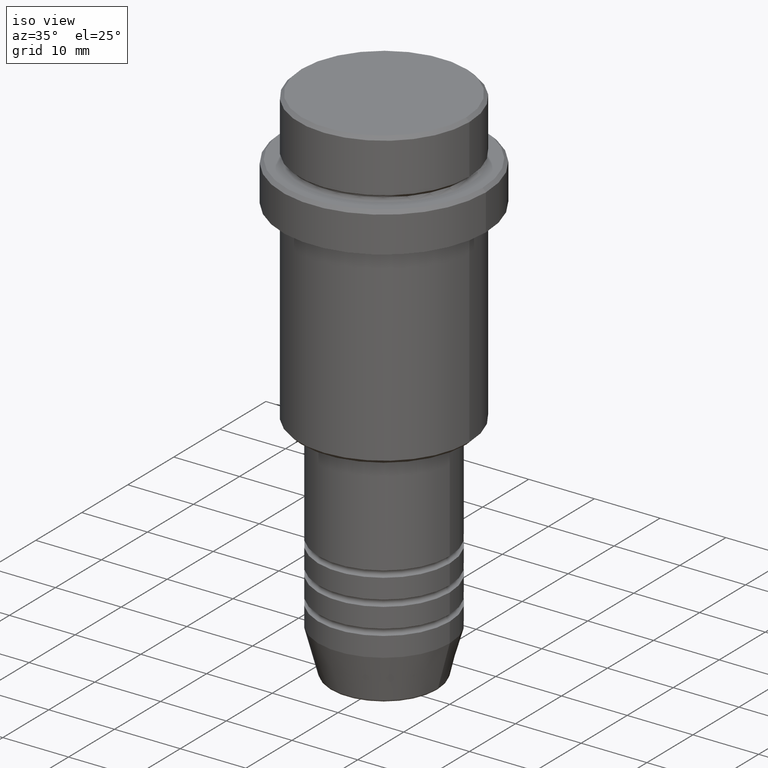
[diagram: clean part render]
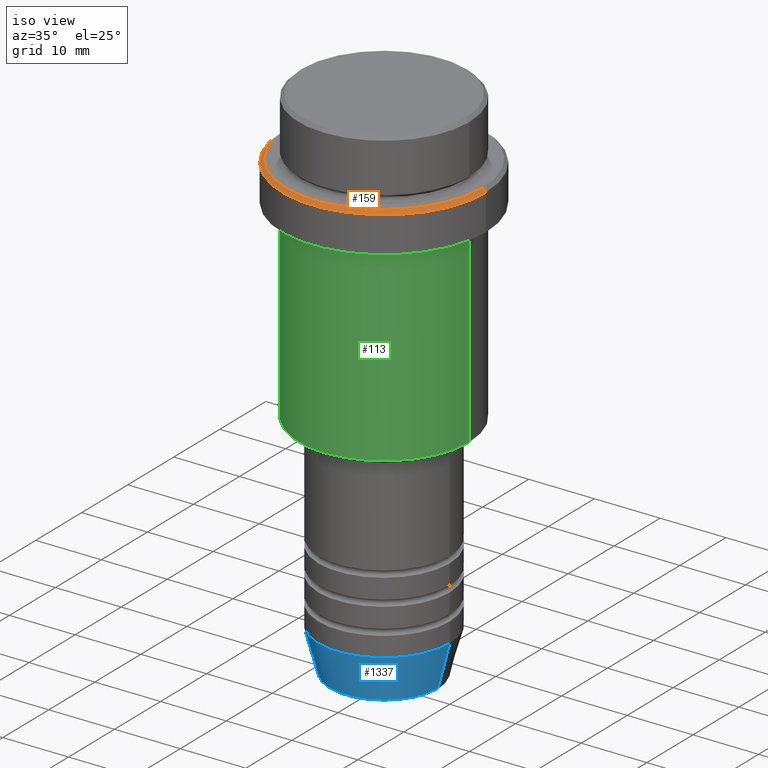
[diagram: same view with three faces highlighted in distinct colors, each labeled with its STEP entity id]
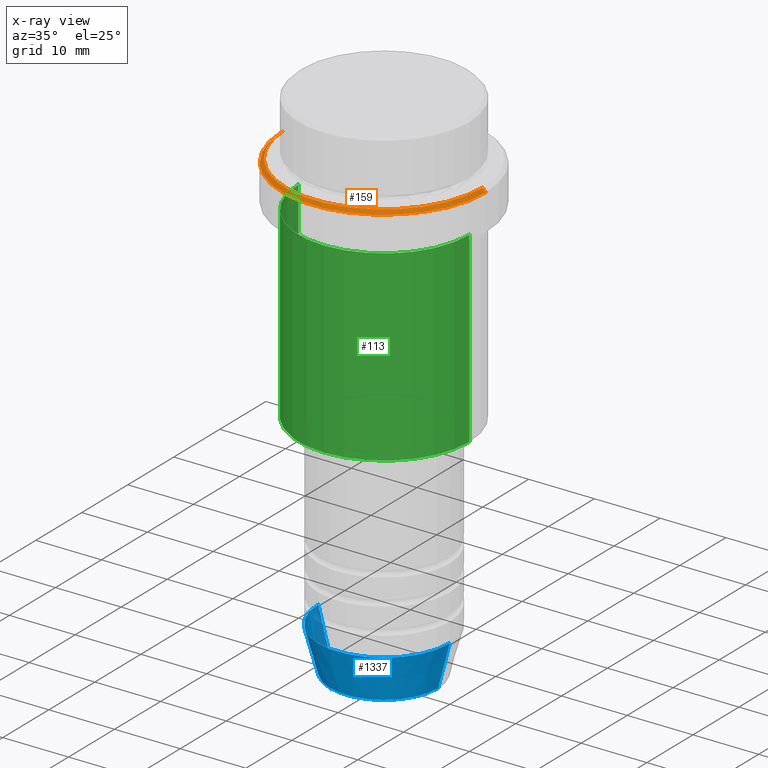
[diagram: x-ray of the same camera — body ghosted, the three highlighted faces saturated]
A machine part, iso view with three faces highlighted in distinct colors.
The next image is the same camera in x-ray (body ghosted, the three faces saturated) — at least one of them is partly hidden behind the body in this view.
Their STEP definitions:

[orange] entity #159 — the highlighted conical surface has half-angle 45 deg.
#18 = ORIENTED_EDGE ( 'NONE', *, *, #632, .F. ) ;
#42 = FACE_OUTER_BOUND ( 'NONE', #634, .T. ) ;
#46 = VERTEX_POINT ( 'NONE', #366 ) ;
#103 = DIRECTION ( 'NONE',  ( 1.000000000000000000, 0.000000000000000000, 0.000000000000000000 ) ) ;
#151 = ORIENTED_EDGE ( 'NONE', *, *, #640, .T. ) ;
#159 = ADVANCED_FACE ( 'NONE', ( #42 ), #188, .T. ) ;
#179 = CARTESIAN_POINT ( 'NONE',  ( 0.000000000000000000, 0.000000000000000000, -9.000000000000000000 ) ) ;
#188 = CONICAL_SURFACE ( 'NONE', #1115, 15.00000000000001421, 0.7853981633974500554 ) ;
#225 = CARTESIAN_POINT ( 'NONE',  ( 0.000000000000000000, 0.000000000000000000, -9.499999999999984013 ) ) ;
#279 = VERTEX_POINT ( 'NONE', #342 ) ;
#302 = CARTESIAN_POINT ( 'NONE',  ( 15.50000000000000000, 0.000000000000000000, -9.499999999999984013 ) ) ;
#342 = CARTESIAN_POINT ( 'NONE',  ( -15.00000000000001421, 0.000000000000000000, -9.000000000000000000 ) ) ;
#366 = CARTESIAN_POINT ( 'NONE',  ( 15.00000000000001421, 1.867586368699714559E-15, -9.000000000000000000 ) ) ;
#410 = AXIS2_PLACEMENT_3D ( 'NONE', #1376, #1281, #954 ) ;
#440 = DIRECTION ( 'NONE',  ( 0.000000000000000000, 0.000000000000000000, -1.000000000000000000 ) ) ;
#445 = CARTESIAN_POINT ( 'NONE',  ( -15.50000000000000000, 1.898202538678397557E-15, -9.499999999999984013 ) ) ;
#541 = LINE ( 'NONE', #970, #1031 ) ;
#632 = EDGE_CURVE ( 'NONE', #1046, #700, #1004, .T. ) ;
#634 = EDGE_LOOP ( 'NONE', ( #1413, #1360, #151, #18 ) ) ;
#636 = DIRECTION ( 'NONE',  ( 0.000000000000000000, 0.000000000000000000, -1.000000000000000000 ) ) ;
#640 = EDGE_CURVE ( 'NONE', #279, #700, #978, .T. ) ;
#700 = VERTEX_POINT ( 'NONE', #445 ) ;
#711 = AXIS2_PLACEMENT_3D ( 'NONE', #225, #440, #103 ) ;
#794 = DIRECTION ( 'NONE',  ( -1.000000000000000000, 0.000000000000000000, 0.000000000000000000 ) ) ;
#883 = EDGE_CURVE ( 'NONE', #279, #46, #1121, .T. ) ;
#954 = DIRECTION ( 'NONE',  ( 1.000000000000000000, 0.000000000000000000, 0.000000000000000000 ) ) ;
#969 = EDGE_CURVE ( 'NONE', #46, #1046, #541, .T. ) ;
#970 = CARTESIAN_POINT ( 'NONE',  ( 15.00000000000001421, 1.836970198721031561E-15, -9.000000000000000000 ) ) ;
#978 = LINE ( 'NONE', #1405, #1371 ) ;
#1003 = DIRECTION ( 'NONE',  ( -0.7071067811865487940, 0.000000000000000000, -0.7071067811865463515 ) ) ;
#1004 = CIRCLE ( 'NONE', #711, 15.50000000000000000 ) ;
#1031 = VECTOR ( 'NONE', #1399, 1000.000000000000000 ) ;
#1046 = VERTEX_POINT ( 'NONE', #302 ) ;
#1115 = AXIS2_PLACEMENT_3D ( 'NONE', #179, #636, #794 ) ;
#1121 = CIRCLE ( 'NONE', #410, 15.00000000000001421 ) ;
#1281 = DIRECTION ( 'NONE',  ( -0.000000000000000000, -0.000000000000000000, 1.000000000000000000 ) ) ;
#1360 = ORIENTED_EDGE ( 'NONE', *, *, #883, .F. ) ;
#1371 = VECTOR ( 'NONE', #1003, 1000.000000000000000 ) ;
#1376 = CARTESIAN_POINT ( 'NONE',  ( 0.000000000000000000, 0.000000000000000000, -9.000000000000000000 ) ) ;
#1399 = DIRECTION ( 'NONE',  ( 0.7071067811865487940, 8.659560562354950115E-17, -0.7071067811865463515 ) ) ;
#1405 = CARTESIAN_POINT ( 'NONE',  ( -15.00000000000001421, 0.000000000000000000, -9.000000000000000000 ) ) ;
#1413 = ORIENTED_EDGE ( 'NONE', *, *, #969, .F. ) ;

[blue] entity #1337 — the highlighted conical surface has half-angle 15 deg.
#13 = CARTESIAN_POINT ( 'NONE',  ( -10.00000000000000000, 1.224646799147353256E-15, -73.00000000000001421 ) ) ;
#19 = CARTESIAN_POINT ( 'NONE',  ( -8.223655072137191269, 1.115877042642912054E-15, -79.62940952255127058 ) ) ;
#165 = EDGE_CURVE ( 'NONE', #1254, #859, #1000, .T. ) ;
#196 = CIRCLE ( 'NONE', #242, 10.00000000000000000 ) ;
#213 = DIRECTION ( 'NONE',  ( -0.000000000000000000, -0.000000000000000000, 1.000000000000000000 ) ) ;
#242 = AXIS2_PLACEMENT_3D ( 'NONE', #583, #787, #698 ) ;
#295 = FACE_OUTER_BOUND ( 'NONE', #789, .T. ) ;
#316 = ORIENTED_EDGE ( 'NONE', *, *, #876, .T. ) ;
#324 = AXIS2_PLACEMENT_3D ( 'NONE', #518, #213, #663 ) ;
#407 = VERTEX_POINT ( 'NONE', #13 ) ;
#439 = LINE ( 'NONE', #768, #606 ) ;
#458 = VECTOR ( 'NONE', #720, 1000.000000000000114 ) ;
#518 = CARTESIAN_POINT ( 'NONE',  ( 0.000000000000000000, 0.000000000000000000, -79.62940952255127058 ) ) ;
#583 = CARTESIAN_POINT ( 'NONE',  ( 0.000000000000000000, 0.000000000000000000, -73.00000000000001421 ) ) ;
#606 = VECTOR ( 'NONE', #1201, 1000.000000000000114 ) ;
#619 = CARTESIAN_POINT ( 'NONE',  ( 0.000000000000000000, 0.000000000000000000, -73.00000000000001421 ) ) ;
#627 = CARTESIAN_POINT ( 'NONE',  ( 10.00000000000000000, 0.000000000000000000, -73.00000000000001421 ) ) ;
#663 = DIRECTION ( 'NONE',  ( 1.000000000000000000, 0.000000000000000000, 0.000000000000000000 ) ) ;
#669 = CONICAL_SURFACE ( 'NONE', #942, 10.00000000000000000, 0.2617993877991502960 ) ;
#698 = DIRECTION ( 'NONE',  ( 1.000000000000000000, 0.000000000000000000, 0.000000000000000000 ) ) ;
#720 = DIRECTION ( 'NONE',  ( 0.2588190451025215166, 0.000000000000000000, 0.9659258262890679791 ) ) ;
#722 = ORIENTED_EDGE ( 'NONE', *, *, #1185, .F. ) ;
#768 = CARTESIAN_POINT ( 'NONE',  ( -10.00000000000000000, 1.224646799147353256E-15, -73.00000000000001421 ) ) ;
#787 = DIRECTION ( 'NONE',  ( -0.000000000000000000, -0.000000000000000000, 1.000000000000000000 ) ) ;
#789 = EDGE_LOOP ( 'NONE', ( #1131, #1345, #316, #722 ) ) ;
#850 = LINE ( 'NONE', #627, #458 ) ;
#859 = VERTEX_POINT ( 'NONE', #921 ) ;
#874 = CARTESIAN_POINT ( 'NONE',  ( 10.00000000000000000, 0.000000000000000000, -73.00000000000001421 ) ) ;
#876 = EDGE_CURVE ( 'NONE', #859, #1063, #850, .T. ) ;
#921 = CARTESIAN_POINT ( 'NONE',  ( 8.223655072137191269, 0.000000000000000000, -79.62940952255127058 ) ) ;
#942 = AXIS2_PLACEMENT_3D ( 'NONE', #619, #1048, #1391 ) ;
#1000 = CIRCLE ( 'NONE', #324, 8.223655072137191269 ) ;
#1048 = DIRECTION ( 'NONE',  ( -0.000000000000000000, -0.000000000000000000, 1.000000000000000000 ) ) ;
#1063 = VERTEX_POINT ( 'NONE', #874 ) ;
#1072 = EDGE_CURVE ( 'NONE', #1254, #407, #439, .T. ) ;
#1131 = ORIENTED_EDGE ( 'NONE', *, *, #1072, .F. ) ;
#1185 = EDGE_CURVE ( 'NONE', #407, #1063, #196, .T. ) ;
#1201 = DIRECTION ( 'NONE',  ( -0.2588190451025215166, 3.169619151431774802E-17, 0.9659258262890679791 ) ) ;
#1254 = VERTEX_POINT ( 'NONE', #19 ) ;
#1337 = ADVANCED_FACE ( 'NONE', ( #295 ), #669, .T. ) ;
#1345 = ORIENTED_EDGE ( 'NONE', *, *, #165, .T. ) ;
#1391 = DIRECTION ( 'NONE',  ( 1.000000000000000000, 0.000000000000000000, 0.000000000000000000 ) ) ;

[green] entity #113 — the highlighted cylindrical surface (partial cylindrical patch) has radius 13 mm, axis along (-0, -0, 1).
#95 = AXIS2_PLACEMENT_3D ( 'NONE', #215, #1110, #1105 ) ;
#102 = FACE_OUTER_BOUND ( 'NONE', #973, .T. ) ;
#113 = ADVANCED_FACE ( 'NONE', ( #102 ), #1318, .T. ) ;
#137 = CARTESIAN_POINT ( 'NONE',  ( -13.00000000000000000, 1.592040838891559095E-15, -44.50000000000001421 ) ) ;
#156 = ORIENTED_EDGE ( 'NONE', *, *, #867, .T. ) ;
#193 = VERTEX_POINT ( 'NONE', #771 ) ;
#215 = CARTESIAN_POINT ( 'NONE',  ( 0.000000000000000000, 0.000000000000000000, -16.00000000000000000 ) ) ;
#220 = CIRCLE ( 'NONE', #756, 13.00000000000000000 ) ;
#312 = CARTESIAN_POINT ( 'NONE',  ( 13.00000000000000000, 0.000000000000000000, -16.00000000000000000 ) ) ;
#332 = CARTESIAN_POINT ( 'NONE',  ( 0.000000000000000000, 0.000000000000000000, 0.000000000000000000 ) ) ;
#363 = CARTESIAN_POINT ( 'NONE',  ( 13.00000000000000000, 0.000000000000000000, 0.000000000000000000 ) ) ;
#387 = ORIENTED_EDGE ( 'NONE', *, *, #784, .T. ) ;
#500 = EDGE_CURVE ( 'NONE', #824, #193, #852, .T. ) ;
#533 = DIRECTION ( 'NONE',  ( -0.000000000000000000, -0.000000000000000000, 1.000000000000000000 ) ) ;
#569 = DIRECTION ( 'NONE',  ( 1.000000000000000000, 0.000000000000000000, 0.000000000000000000 ) ) ;
#611 = CARTESIAN_POINT ( 'NONE',  ( -13.00000000000000000, 1.592040838891559095E-15, 0.000000000000000000 ) ) ;
#673 = EDGE_CURVE ( 'NONE', #193, #1137, #1169, .T. ) ;
#725 = CARTESIAN_POINT ( 'NONE',  ( 13.00000000000000000, 0.000000000000000000, -44.50000000000001421 ) ) ;
#756 = AXIS2_PLACEMENT_3D ( 'NONE', #1018, #533, #1393 ) ;
#771 = CARTESIAN_POINT ( 'NONE',  ( -13.00000000000000000, 1.592040838891559095E-15, -16.00000000000000000 ) ) ;
#784 = EDGE_CURVE ( 'NONE', #1377, #1137, #806, .T. ) ;
#806 = LINE ( 'NONE', #363, #889 ) ;
#824 = VERTEX_POINT ( 'NONE', #137 ) ;
#844 = AXIS2_PLACEMENT_3D ( 'NONE', #332, #1342, #569 ) ;
#852 = LINE ( 'NONE', #611, #1074 ) ;
#867 = EDGE_CURVE ( 'NONE', #824, #1377, #220, .T. ) ;
#889 = VECTOR ( 'NONE', #1335, 1000.000000000000000 ) ;
#918 = ORIENTED_EDGE ( 'NONE', *, *, #500, .F. ) ;
#948 = ORIENTED_EDGE ( 'NONE', *, *, #673, .F. ) ;
#967 = DIRECTION ( 'NONE',  ( -0.000000000000000000, -0.000000000000000000, 1.000000000000000000 ) ) ;
#973 = EDGE_LOOP ( 'NONE', ( #918, #156, #387, #948 ) ) ;
#1018 = CARTESIAN_POINT ( 'NONE',  ( 0.000000000000000000, 0.000000000000000000, -44.50000000000001421 ) ) ;
#1074 = VECTOR ( 'NONE', #967, 1000.000000000000000 ) ;
#1105 = DIRECTION ( 'NONE',  ( 1.000000000000000000, 0.000000000000000000, 0.000000000000000000 ) ) ;
#1110 = DIRECTION ( 'NONE',  ( -0.000000000000000000, -0.000000000000000000, 1.000000000000000000 ) ) ;
#1137 = VERTEX_POINT ( 'NONE', #312 ) ;
#1169 = CIRCLE ( 'NONE', #95, 13.00000000000000000 ) ;
#1318 = CYLINDRICAL_SURFACE ( 'NONE', #844, 13.00000000000000000 ) ;
#1335 = DIRECTION ( 'NONE',  ( -0.000000000000000000, -0.000000000000000000, 1.000000000000000000 ) ) ;
#1342 = DIRECTION ( 'NONE',  ( -0.000000000000000000, -0.000000000000000000, 1.000000000000000000 ) ) ;
#1377 = VERTEX_POINT ( 'NONE', #725 ) ;
#1393 = DIRECTION ( 'NONE',  ( -1.000000000000000000, 0.000000000000000000, 0.000000000000000000 ) ) ;